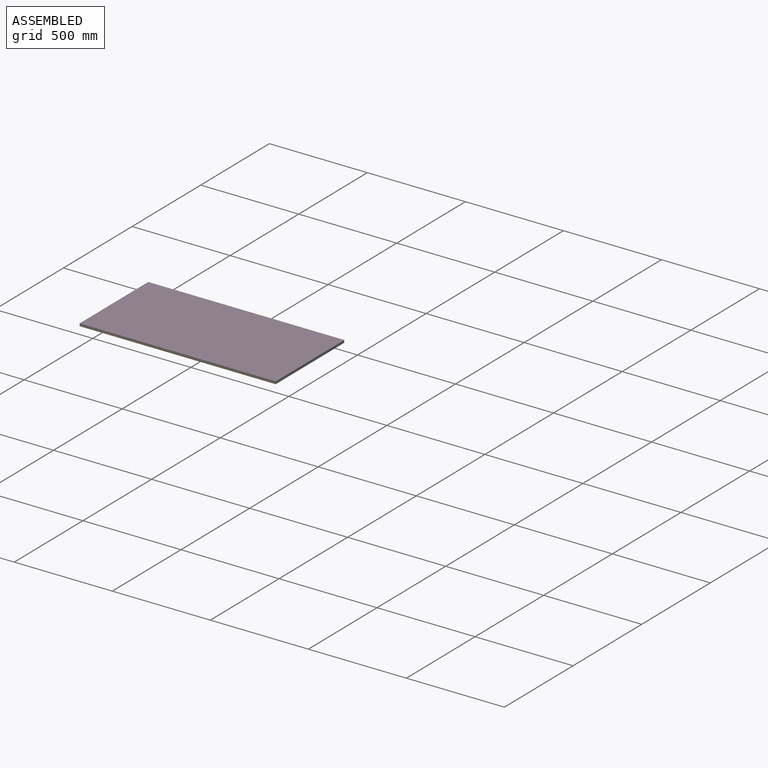
[diagram: assembled view]
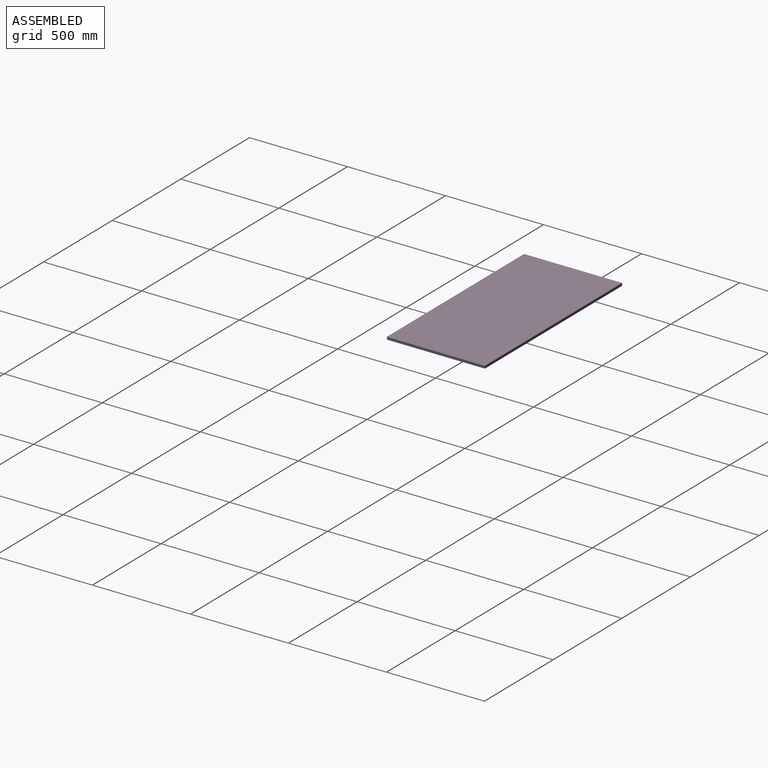
[diagram: assembled view, second angle]
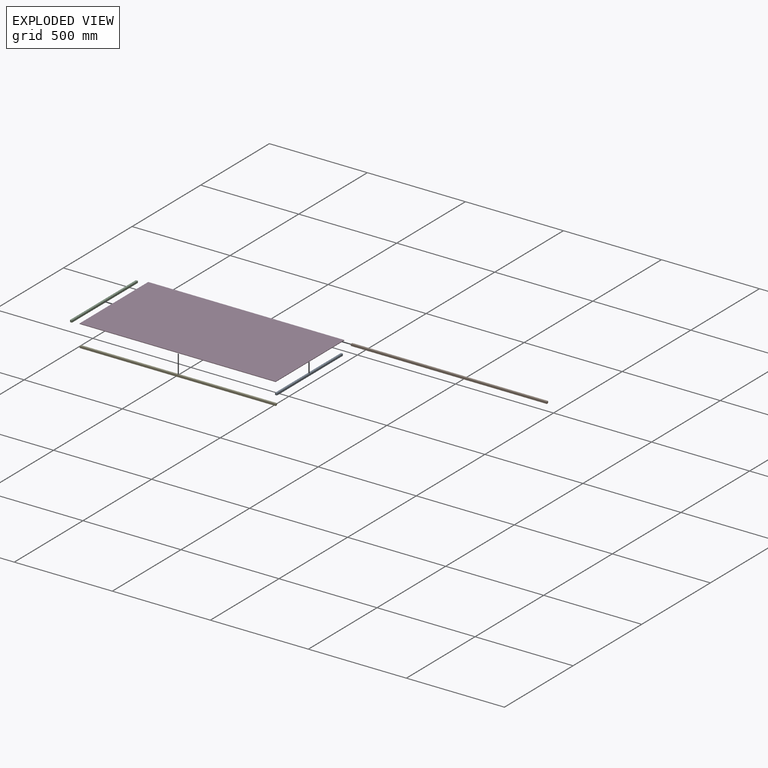
[diagram: exploded view]
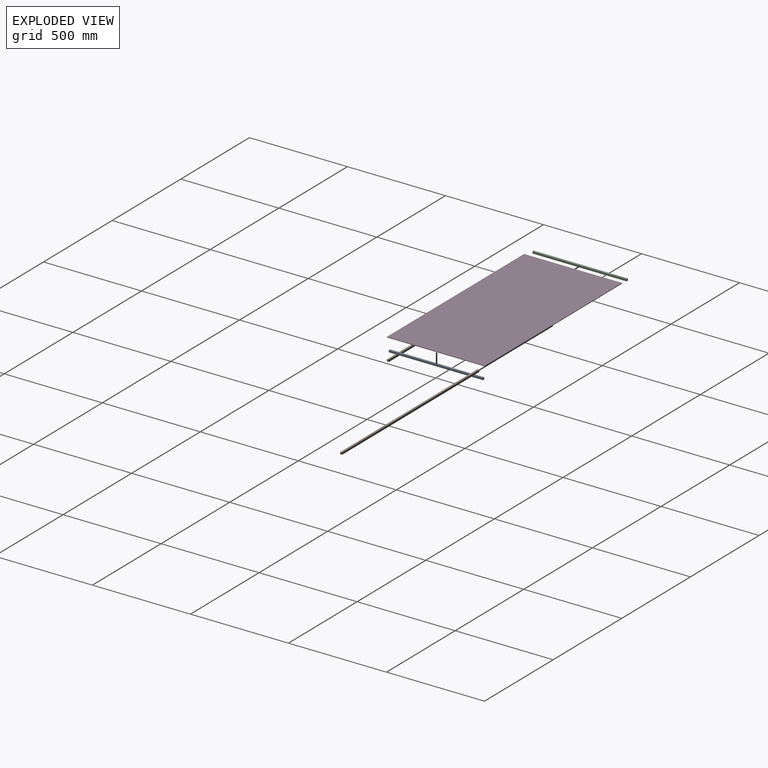
[diagram: exploded view, second angle]
ASSEMBLY  parts=5 mates=12
PART A: 6 faces, bbox 10x480x10 mm
  f0: plane 10x10mm, normal (0,1,0), area 100mm2, adj f1,f3,f4,f5
  f1: plane 480x10mm, normal (-1,0,0), area 4800mm2, adj f0,f2,f4,f5
  f2: plane 10x10mm, normal (0,-1,0), area 100mm2, adj f1,f3,f4,f5
  f3: plane 480x10mm, normal (1,0,0), area 4800mm2, adj f0,f2,f4,f5
  f4: plane 480x10mm, normal (0,0,1), area 4800mm2, adj f0,f1,f2,f3
  f5: plane 480x10mm, normal (0,0,-1), area 4800mm2, adj f0,f1,f2,f3
PART B: 6 faces, bbox 1000x10x10 mm
  f0: plane 1000x10mm, normal (0,1,0), area 10000mm2, adj f1,f3,f4,f5
  f1: plane 10x10mm, normal (-1,0,0), area 100mm2, adj f0,f2,f4,f5
  f2: plane 1000x10mm, normal (0,-1,0), area 10000mm2, adj f1,f3,f4,f5
  f3: plane 10x10mm, normal (1,0,0), area 100mm2, adj f0,f2,f4,f5
  f4: plane 1000x10mm, normal (0,0,1), area 10000mm2, adj f0,f1,f2,f3
  f5: plane 1000x10mm, normal (0,0,-1), area 10000mm2, adj f0,f1,f2,f3
PART C: same geometry as A
PART D: 6 faces, bbox 1000x500x3 mm
  f0: plane 1000x3mm, normal (0,1,0), area 3000mm2, adj f1,f3,f4,f5
  f1: plane 500x3mm, normal (-1,0,0), area 1500mm2, adj f0,f2,f4,f5
  f2: plane 1000x3mm, normal (0,-1,0), area 3000mm2, adj f1,f3,f4,f5
  f3: plane 500x3mm, normal (1,0,0), area 1500mm2, adj f0,f2,f4,f5
  f4: plane 1000x500mm, normal (0,0,1), area 500000mm2, adj f0,f1,f2,f3
  f5: plane 1000x500mm, normal (0,0,-1), area 500000mm2, adj f0,f1,f2,f3
PART E: same geometry as B
PLACE A t=(1061.6,-188.41,21.02)mm
PLACE B t=(71.6,291.59,21.02)mm
PLACE C t=(71.6,-188.41,21.02)mm
PLACE D t=(71.6,-198.41,31.02)mm
PLACE E t=(71.6,-198.41,21.02)mm
MATE planar A.f4 <-> D.f5  axis (0,0,1) through (1066.6,51.59,31.02)mm
MATE planar E.f4 <-> D.f5  axis (0,0,1) through (571.6,-193.41,31.02)mm
MATE planar C.f1 <-> D.f1  axis (-1,0,0) through (71.6,51.59,26.02)mm
MATE planar B.f3 <-> D.f3  axis (1,0,0) through (1071.6,296.59,26.02)mm
MATE planar E.f0 <-> A.f2  axis (0,1,0) through (571.6,-188.41,26.02)mm
MATE planar D.f5 <-> B.f4  axis (0,0,-1) through (571.6,51.59,31.02)mm
MATE planar C.f2 <-> E.f0  axis (0,-1,0) through (76.6,-188.41,26.02)mm
MATE planar D.f3 <-> E.f3  axis (1,0,0) through (1071.6,51.59,32.52)mm
MATE planar A.f3 <-> D.f3  axis (1,0,0) through (1071.6,51.59,26.02)mm
MATE planar D.f5 <-> C.f4  axis (0,0,-1) through (571.6,51.59,31.02)mm
MATE planar B.f2 <-> A.f0  axis (0,-1,0) through (571.6,291.59,26.02)mm
MATE planar B.f0 <-> D.f0  axis (0,1,0) through (571.6,301.59,26.02)mm
